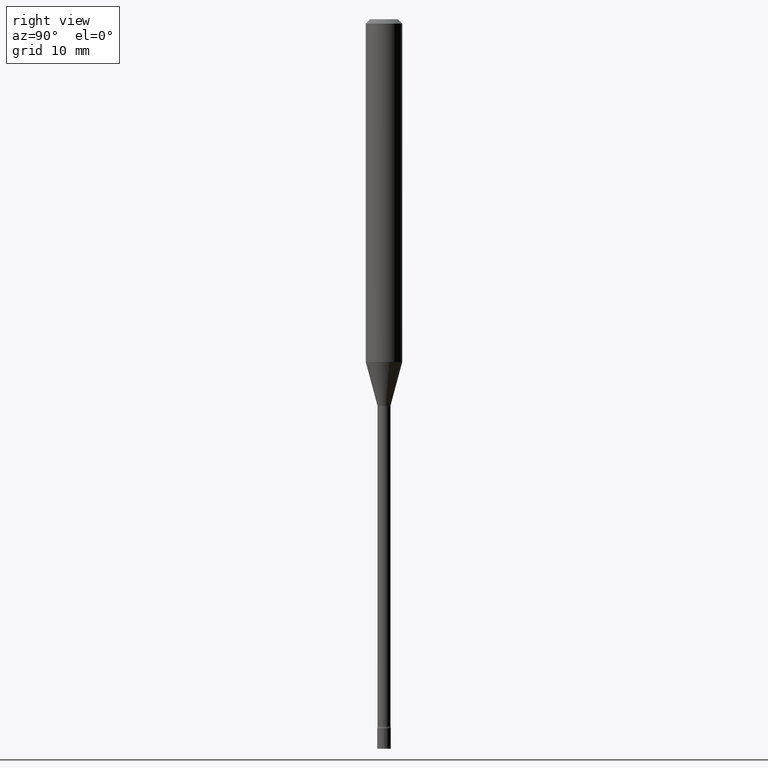
[diagram: clean part render]
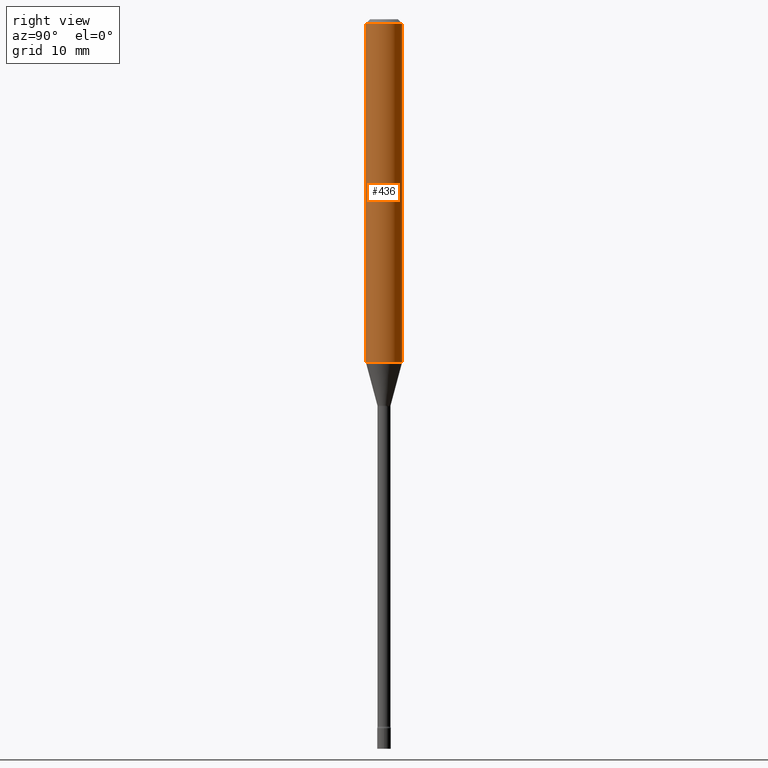
[diagram: same view with one face highlighted and labeled with its STEP entity id]
A machine part, right view. The second image highlights one B-rep face of the part: STEP entity #436.
In plain terms, the highlighted cylindrical surface (edge-blend (fillet) strip) has radius 1.5875 mm, axis along (-0, 0, 1).
Its self-contained STEP definition (entity closure, byte-faithful):
#1 = DIRECTION ( 'NONE',  ( -2.445482045406543342E-29, 3.491462379524561524E-15, 1.000000000000000000 ) ) ;
#26 = VERTEX_POINT ( 'NONE', #280 ) ;
#30 = CARTESIAN_POINT ( 'NONE',  ( -4.364351673553916201E-16, -0.06250000000000000000, 2.182163987202850953E-16 ) ) ;
#43 = CARTESIAN_POINT ( 'NONE',  ( 2.871546515168501925E-29, -4.099762927148765252E-15, -1.174225147374217793 ) ) ;
#52 = AXIS2_PLACEMENT_3D ( 'NONE', #43, #168, #317 ) ;
#69 = LINE ( 'NONE', #30, #203 ) ;
#79 = CARTESIAN_POINT ( 'NONE',  ( 0.000000000000000000, 0.000000000000000000, 0.000000000000000000 ) ) ;
#83 = DIRECTION ( 'NONE',  ( -6.982962677686265922E-15, -1.000000000000000000, 3.491462379524561524E-15 ) ) ;
#103 = DIRECTION ( 'NONE',  ( -2.445482045406543342E-29, 3.491462379524561524E-15, 1.000000000000000000 ) ) ;
#109 = EDGE_LOOP ( 'NONE', ( #482, #259, #299, #153 ) ) ;
#114 = VERTEX_POINT ( 'NONE', #359 ) ;
#153 = ORIENTED_EDGE ( 'NONE', *, *, #184, .F. ) ;
#168 = DIRECTION ( 'NONE',  ( -2.445482045406543342E-29, 3.491462379524561524E-15, 1.000000000000000000 ) ) ;
#184 = EDGE_CURVE ( 'NONE', #266, #114, #69, .T. ) ;
#186 = VECTOR ( 'NONE', #103, 39.37007874015748143 ) ;
#203 = VECTOR ( 'NONE', #499, 39.37007874015748143 ) ;
#207 = EDGE_CURVE ( 'NONE', #337, #26, #334, .T. ) ;
#259 = ORIENTED_EDGE ( 'NONE', *, *, #207, .T. ) ;
#266 = VERTEX_POINT ( 'NONE', #293 ) ;
#274 = CIRCLE ( 'NONE', #52, 0.06250000000000000000 ) ;
#280 = CARTESIAN_POINT ( 'NONE',  ( 4.440892098500914096E-16, 0.06249999999999995143, -0.01500000000000024751 ) ) ;
#293 = CARTESIAN_POINT ( 'NONE',  ( -4.364351673553631225E-16, -0.06250000000000412170, -1.174225147374217570 ) ) ;
#296 = CIRCLE ( 'NONE', #416, 0.06250000000000000000 ) ;
#298 = EDGE_CURVE ( 'NONE', #114, #26, #296, .T. ) ;
#299 = ORIENTED_EDGE ( 'NONE', *, *, #298, .F. ) ;
#306 = DIRECTION ( 'NONE',  ( -2.445482045406543342E-29, 3.491462379524561524E-15, 1.000000000000000000 ) ) ;
#311 = FACE_OUTER_BOUND ( 'NONE', #109, .T. ) ;
#317 = DIRECTION ( 'NONE',  ( -6.982962677686265922E-15, -1.000000000000000000, 4.370956789862821150E-15 ) ) ;
#334 = LINE ( 'NONE', #461, #186 ) ;
#337 = VERTEX_POINT ( 'NONE', #509 ) ;
#359 = CARTESIAN_POINT ( 'NONE',  ( -4.364351673553912750E-16, -0.06250000000000005551, -0.01499999999999981209 ) ) ;
#397 = DIRECTION ( 'NONE',  ( -6.982962677686265922E-15, -1.000000000000000000, 3.483106191921935554E-15 ) ) ;
#416 = AXIS2_PLACEMENT_3D ( 'NONE', #467, #306, #397 ) ;
#428 = CYLINDRICAL_SURFACE ( 'NONE', #434, 0.06250000000000000000 ) ;
#434 = AXIS2_PLACEMENT_3D ( 'NONE', #79, #1, #83 ) ;
#436 = ADVANCED_FACE ( 'NONE', ( #311 ), #428, .T. ) ;
#461 = CARTESIAN_POINT ( 'NONE',  ( 4.440892098500625669E-16, 0.06250000000000000000, -2.182163987202850953E-16 ) ) ;
#467 = CARTESIAN_POINT ( 'NONE',  ( 3.668223068109822037E-31, -5.237193569286852393E-17, -0.01500000000000003067 ) ) ;
#469 = EDGE_CURVE ( 'NONE', #266, #337, #274, .T. ) ;
#482 = ORIENTED_EDGE ( 'NONE', *, *, #469, .T. ) ;
#499 = DIRECTION ( 'NONE',  ( -2.445482045406543342E-29, 3.491462379524561524E-15, 1.000000000000000000 ) ) ;
#509 = CARTESIAN_POINT ( 'NONE',  ( 4.440892098500910152E-16, 0.06249999999999588524, -1.174225147374218237 ) ) ;